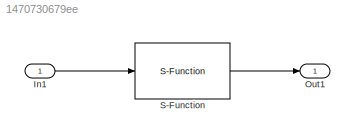
MODEL slx_1470730679ee
KIND model
BLOCK [Inport] In1
  IconDisplay = Port number
BLOCK [Outport] Out1
  IconDisplay = Port number
BLOCK [S-Function] S-Function
  EnableBusSupport = off
  FunctionName = sfun_mask
  Parameters = g_a, g_b
  Ports = [1, 1]
LINE In1:1 -> S-Function:1
LINE S-Function:1 -> Out1:1
